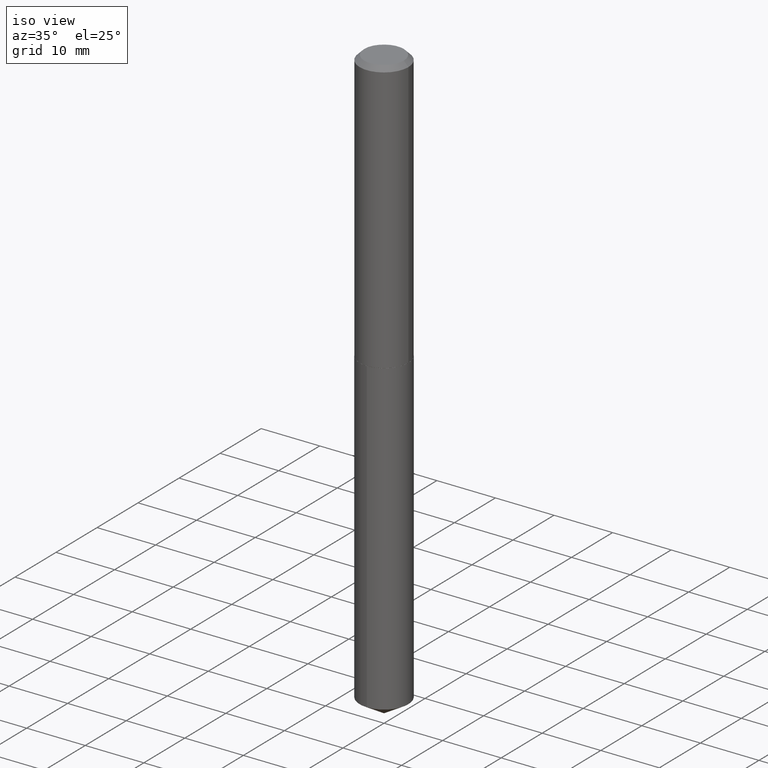
[diagram: clean part render]
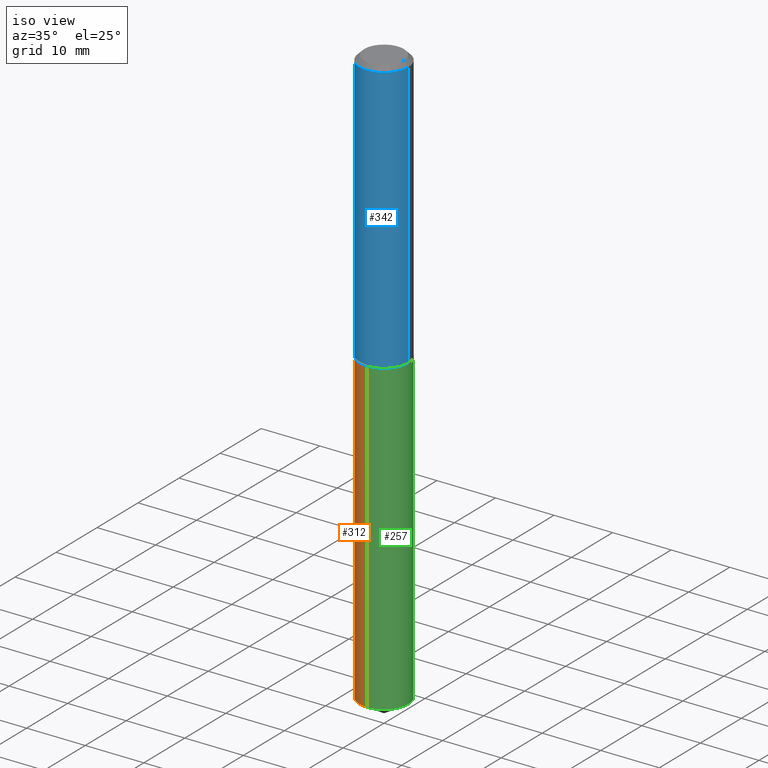
[diagram: same view with three faces highlighted in distinct colors, each labeled with its STEP entity id]
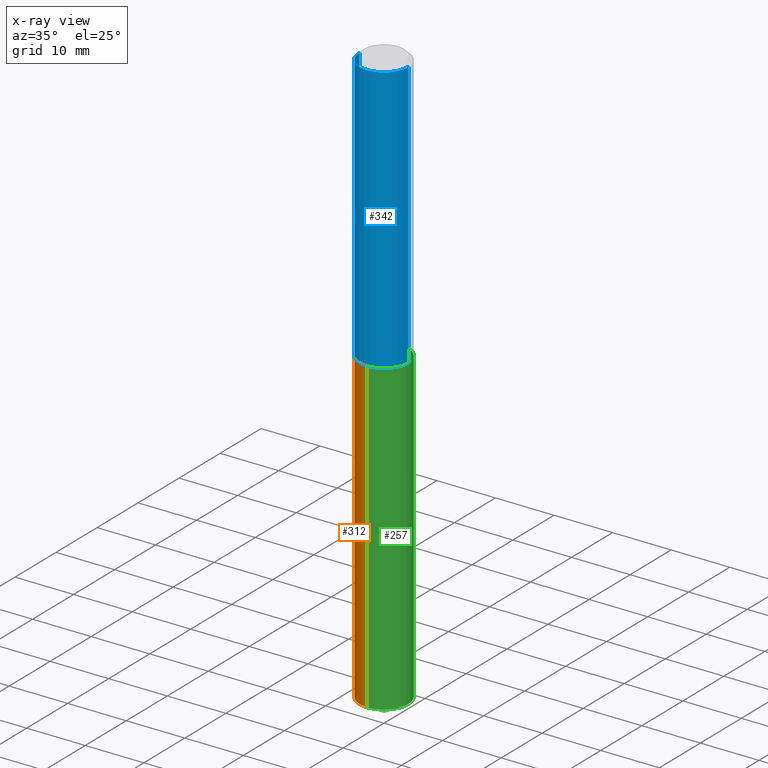
[diagram: x-ray of the same camera — body ghosted, the three highlighted faces saturated]
A machine part, iso view with three faces highlighted in distinct colors.
The next image is the same camera in x-ray (body ghosted, the three faces saturated) — at least one of them is partly hidden behind the body in this view.
Their STEP definitions:

[orange] entity #312 — the highlighted cylindrical surface (edge-blend (fillet) strip) has radius 4.1669 mm, axis along (-0, 0, 1).
#2 = DIRECTION ( 'NONE',  ( -2.445466063798168166E-29, 3.491485266097371711E-15, 1.000000000000000000 ) ) ;
#6 = CARTESIAN_POINT ( 'NONE',  ( -1.145555027274387092E-15, -0.1640500000000063852, -1.828099999999999614 ) ) ;
#7 = VECTOR ( 'NONE', #162, 39.37007874015748143 ) ;
#45 = DIRECTION ( 'NONE',  ( -6.982962677686265133E-15, -1.000000000000000000, 3.330506545156066257E-15 ) ) ;
#49 = FACE_OUTER_BOUND ( 'NONE', #236, .T. ) ;
#74 = VERTEX_POINT ( 'NONE', #356 ) ;
#81 = AXIS2_PLACEMENT_3D ( 'NONE', #96, #297, #45 ) ;
#82 = EDGE_CURVE ( 'NONE', #74, #91, #327, .T. ) ;
#91 = VERTEX_POINT ( 'NONE', #267 ) ;
#96 = CARTESIAN_POINT ( 'NONE',  ( 9.540816781861281945E-29, -1.362177404645281331E-14, -3.901428815448529708 ) ) ;
#116 = VERTEX_POINT ( 'NONE', #323 ) ;
#135 = EDGE_CURVE ( 'NONE', #116, #91, #146, .T. ) ;
#144 = ORIENTED_EDGE ( 'NONE', *, *, #154, .T. ) ;
#146 = CIRCLE ( 'NONE', #304, 0.1640500000000000014 ) ;
#148 = DIRECTION ( 'NONE',  ( -2.445466063798168166E-29, 3.491485266097371711E-15, 1.000000000000000000 ) ) ;
#154 = EDGE_CURVE ( 'NONE', #163, #74, #248, .T. ) ;
#156 = CARTESIAN_POINT ( 'NONE',  ( 1.165645358014539817E-15, 0.1640499999999864011, -3.901428815448530152 ) ) ;
#162 = DIRECTION ( 'NONE',  ( -2.445466063798168166E-29, 3.491485266097371711E-15, 1.000000000000000000 ) ) ;
#163 = VERTEX_POINT ( 'NONE', #156 ) ;
#165 = CYLINDRICAL_SURFACE ( 'NONE', #263, 0.1640500000000000014 ) ;
#175 = ORIENTED_EDGE ( 'NONE', *, *, #135, .F. ) ;
#181 = DIRECTION ( 'NONE',  ( -6.982962677686265133E-15, -1.000000000000000000, 3.330506545156066257E-15 ) ) ;
#193 = LINE ( 'NONE', #226, #7 ) ;
#198 = DIRECTION ( 'NONE',  ( -6.982962677686265133E-15, -1.000000000000000000, 3.330506545156066257E-15 ) ) ;
#217 = EDGE_CURVE ( 'NONE', #163, #116, #193, .T. ) ;
#226 = CARTESIAN_POINT ( 'NONE',  ( 1.165645358014488738E-15, 0.1640499999999935898, -1.828100000000000724 ) ) ;
#228 = DIRECTION ( 'NONE',  ( -2.445466063798168166E-29, 3.491485266097371711E-15, 1.000000000000000000 ) ) ;
#236 = EDGE_LOOP ( 'NONE', ( #321, #144, #386, #175 ) ) ;
#248 = CIRCLE ( 'NONE', #81, 0.1640500000000000014 ) ;
#263 = AXIS2_PLACEMENT_3D ( 'NONE', #370, #228, #198 ) ;
#267 = CARTESIAN_POINT ( 'NONE',  ( -1.145555027274387092E-15, -0.1640500000000063852, -1.828099999999999614 ) ) ;
#269 = CARTESIAN_POINT ( 'NONE',  ( 4.470561524587048986E-29, -6.382777035539155361E-15, -1.828100000000000058 ) ) ;
#297 = DIRECTION ( 'NONE',  ( -2.445466063798168166E-29, 3.491485266097371711E-15, 1.000000000000000000 ) ) ;
#304 = AXIS2_PLACEMENT_3D ( 'NONE', #269, #2, #181 ) ;
#312 = ADVANCED_FACE ( 'NONE', ( #49 ), #165, .T. ) ;
#321 = ORIENTED_EDGE ( 'NONE', *, *, #217, .F. ) ;
#323 = CARTESIAN_POINT ( 'NONE',  ( 1.165645358014539817E-15, 0.1640499999999935898, -1.828100000000000724 ) ) ;
#327 = LINE ( 'NONE', #6, #377 ) ;
#356 = CARTESIAN_POINT ( 'NONE',  ( -1.145555027274336999E-15, -0.1640500000000136849, -3.901428815448529264 ) ) ;
#370 = CARTESIAN_POINT ( 'NONE',  ( 4.470561524587048986E-29, -6.382777035539155361E-15, -1.828100000000000058 ) ) ;
#377 = VECTOR ( 'NONE', #148, 39.37007874015748143 ) ;
#386 = ORIENTED_EDGE ( 'NONE', *, *, #82, .T. ) ;

[blue] entity #342 — the highlighted cylindrical surface (edge-blend (fillet) strip) has radius 4.1669 mm, axis along (-0, 0, 1).
#9 = EDGE_CURVE ( 'NONE', #318, #305, #311, .T. ) ;
#10 = CARTESIAN_POINT ( 'NONE',  ( 0.1640500000000001124, -1.145555027274433043E-15, 7.999368000693238548E-30 ) ) ;
#12 = AXIS2_PLACEMENT_3D ( 'NONE', #284, #262, #260 ) ;
#22 = DIRECTION ( 'NONE',  ( 1.000000000000000000, -6.982962677686266711E-15, 0.000000000000000000 ) ) ;
#29 = EDGE_LOOP ( 'NONE', ( #387, #372, #283, #333 ) ) ;
#62 = DIRECTION ( 'NONE',  ( -2.445468806185136877E-29, 3.491481338843145188E-15, 1.000000000000000000 ) ) ;
#66 = DIRECTION ( 'NONE',  ( 1.000000000000000000, -6.982962677686266711E-15, 0.000000000000000000 ) ) ;
#69 = LINE ( 'NONE', #10, #225 ) ;
#76 = VERTEX_POINT ( 'NONE', #216 ) ;
#79 = CARTESIAN_POINT ( 'NONE',  ( -0.1640500000000001957, -5.215385936855287718E-15, -1.827599999999999891 ) ) ;
#88 = EDGE_CURVE ( 'NONE', #305, #76, #69, .T. ) ;
#93 = CARTESIAN_POINT ( 'NONE',  ( -0.1640500000000000291, -2.079424685339844945E-15, -0.03125000000000022898 ) ) ;
#105 = DIRECTION ( 'NONE',  ( -2.445468806185136597E-29, 3.491481338843145583E-15, 1.000000000000000000 ) ) ;
#120 = CARTESIAN_POINT ( 'NONE',  ( -0.1640500000000001124, 1.165645358014445154E-15, -8.069513015563179171E-30 ) ) ;
#122 = EDGE_CURVE ( 'NONE', #318, #150, #271, .T. ) ;
#124 = CARTESIAN_POINT ( 'NONE',  ( 4.469338790183955624E-29, -6.381031294869733069E-15, -1.827599999999999891 ) ) ;
#126 = AXIS2_PLACEMENT_3D ( 'NONE', #124, #245, #66 ) ;
#128 = CARTESIAN_POINT ( 'NONE',  ( 0.1640500000000001957, -7.526586322144166309E-15, -1.827599999999999891 ) ) ;
#141 = FACE_OUTER_BOUND ( 'NONE', #29, .T. ) ;
#145 = CIRCLE ( 'NONE', #275, 0.1640500000000000291 ) ;
#150 = VERTEX_POINT ( 'NONE', #93 ) ;
#168 = CYLINDRICAL_SURFACE ( 'NONE', #12, 0.1640500000000001124 ) ;
#183 = DIRECTION ( 'NONE',  ( -2.445468806185136877E-29, 3.491481338843145188E-15, 1.000000000000000000 ) ) ;
#216 = CARTESIAN_POINT ( 'NONE',  ( 0.1640500000000000291, -1.254663819113281355E-15, -0.03125000000000022898 ) ) ;
#225 = VECTOR ( 'NONE', #62, 39.37007874015748143 ) ;
#245 = DIRECTION ( 'NONE',  ( -2.445468806185136597E-29, 3.491481338843145583E-15, 1.000000000000000000 ) ) ;
#253 = VECTOR ( 'NONE', #183, 39.37007874015748143 ) ;
#260 = DIRECTION ( 'NONE',  ( 1.000000000000000000, -6.982962677686268288E-15, 4.876176775795935793E-29 ) ) ;
#262 = DIRECTION ( 'NONE',  ( -2.445468806185136597E-29, 3.491481338843145583E-15, 1.000000000000000000 ) ) ;
#271 = LINE ( 'NONE', #120, #253 ) ;
#275 = AXIS2_PLACEMENT_3D ( 'NONE', #278, #105, #22 ) ;
#278 = CARTESIAN_POINT ( 'NONE',  ( 7.642090019328607041E-31, -1.091087918388490883E-16, -0.03125000000000022898 ) ) ;
#283 = ORIENTED_EDGE ( 'NONE', *, *, #88, .T. ) ;
#284 = CARTESIAN_POINT ( 'NONE',  ( 0.000000000000000000, 0.000000000000000000, 0.000000000000000000 ) ) ;
#305 = VERTEX_POINT ( 'NONE', #128 ) ;
#311 = CIRCLE ( 'NONE', #126, 0.1640500000000001957 ) ;
#318 = VERTEX_POINT ( 'NONE', #79 ) ;
#333 = ORIENTED_EDGE ( 'NONE', *, *, #365, .F. ) ;
#342 = ADVANCED_FACE ( 'NONE', ( #141 ), #168, .T. ) ;
#365 = EDGE_CURVE ( 'NONE', #150, #76, #145, .T. ) ;
#372 = ORIENTED_EDGE ( 'NONE', *, *, #9, .T. ) ;
#387 = ORIENTED_EDGE ( 'NONE', *, *, #122, .F. ) ;

[green] entity #257 — the highlighted cylindrical surface (edge-blend (fillet) strip) has radius 4.1669 mm, axis along (-0, 0, 1).
#6 = CARTESIAN_POINT ( 'NONE',  ( -1.145555027274387092E-15, -0.1640500000000063852, -1.828099999999999614 ) ) ;
#7 = VECTOR ( 'NONE', #162, 39.37007874015748143 ) ;
#11 = DIRECTION ( 'NONE',  ( -2.445466063798168166E-29, 3.491485266097371711E-15, 1.000000000000000000 ) ) ;
#38 = CARTESIAN_POINT ( 'NONE',  ( 9.540816781861281945E-29, -1.362177404645281331E-14, -3.901428815448529708 ) ) ;
#63 = CIRCLE ( 'NONE', #114, 0.1640500000000000014 ) ;
#72 = EDGE_CURVE ( 'NONE', #74, #163, #324, .T. ) ;
#74 = VERTEX_POINT ( 'NONE', #356 ) ;
#82 = EDGE_CURVE ( 'NONE', #74, #91, #327, .T. ) ;
#91 = VERTEX_POINT ( 'NONE', #267 ) ;
#99 = CARTESIAN_POINT ( 'NONE',  ( 4.470561524587048986E-29, -6.382777035539155361E-15, -1.828100000000000058 ) ) ;
#101 = CARTESIAN_POINT ( 'NONE',  ( 4.470561524587048986E-29, -6.382777035539155361E-15, -1.828100000000000058 ) ) ;
#114 = AXIS2_PLACEMENT_3D ( 'NONE', #99, #123, #341 ) ;
#116 = VERTEX_POINT ( 'NONE', #323 ) ;
#123 = DIRECTION ( 'NONE',  ( -2.445466063798168166E-29, 3.491485266097371711E-15, 1.000000000000000000 ) ) ;
#140 = ORIENTED_EDGE ( 'NONE', *, *, #246, .F. ) ;
#148 = DIRECTION ( 'NONE',  ( -2.445466063798168166E-29, 3.491485266097371711E-15, 1.000000000000000000 ) ) ;
#156 = CARTESIAN_POINT ( 'NONE',  ( 1.165645358014539817E-15, 0.1640499999999864011, -3.901428815448530152 ) ) ;
#162 = DIRECTION ( 'NONE',  ( -2.445466063798168166E-29, 3.491485266097371711E-15, 1.000000000000000000 ) ) ;
#163 = VERTEX_POINT ( 'NONE', #156 ) ;
#166 = ORIENTED_EDGE ( 'NONE', *, *, #72, .T. ) ;
#193 = LINE ( 'NONE', #226, #7 ) ;
#214 = DIRECTION ( 'NONE',  ( -2.445466063798168166E-29, 3.491485266097371711E-15, 1.000000000000000000 ) ) ;
#217 = EDGE_CURVE ( 'NONE', #163, #116, #193, .T. ) ;
#222 = DIRECTION ( 'NONE',  ( -6.982962677686265133E-15, -1.000000000000000000, 3.330506545156066257E-15 ) ) ;
#226 = CARTESIAN_POINT ( 'NONE',  ( 1.165645358014488738E-15, 0.1640499999999935898, -1.828100000000000724 ) ) ;
#246 = EDGE_CURVE ( 'NONE', #91, #116, #63, .T. ) ;
#257 = ADVANCED_FACE ( 'NONE', ( #274 ), #371, .T. ) ;
#259 = AXIS2_PLACEMENT_3D ( 'NONE', #38, #214, #358 ) ;
#267 = CARTESIAN_POINT ( 'NONE',  ( -1.145555027274387092E-15, -0.1640500000000063852, -1.828099999999999614 ) ) ;
#274 = FACE_OUTER_BOUND ( 'NONE', #384, .T. ) ;
#277 = ORIENTED_EDGE ( 'NONE', *, *, #82, .F. ) ;
#323 = CARTESIAN_POINT ( 'NONE',  ( 1.165645358014539817E-15, 0.1640499999999935898, -1.828100000000000724 ) ) ;
#324 = CIRCLE ( 'NONE', #259, 0.1640500000000000014 ) ;
#327 = LINE ( 'NONE', #6, #377 ) ;
#341 = DIRECTION ( 'NONE',  ( -6.982962677686265133E-15, -1.000000000000000000, 3.330506545156066257E-15 ) ) ;
#353 = AXIS2_PLACEMENT_3D ( 'NONE', #101, #11, #222 ) ;
#356 = CARTESIAN_POINT ( 'NONE',  ( -1.145555027274336999E-15, -0.1640500000000136849, -3.901428815448529264 ) ) ;
#358 = DIRECTION ( 'NONE',  ( -6.982962677686265133E-15, -1.000000000000000000, 3.330506545156066257E-15 ) ) ;
#360 = ORIENTED_EDGE ( 'NONE', *, *, #217, .T. ) ;
#371 = CYLINDRICAL_SURFACE ( 'NONE', #353, 0.1640500000000000014 ) ;
#377 = VECTOR ( 'NONE', #148, 39.37007874015748143 ) ;
#384 = EDGE_LOOP ( 'NONE', ( #166, #360, #140, #277 ) ) ;